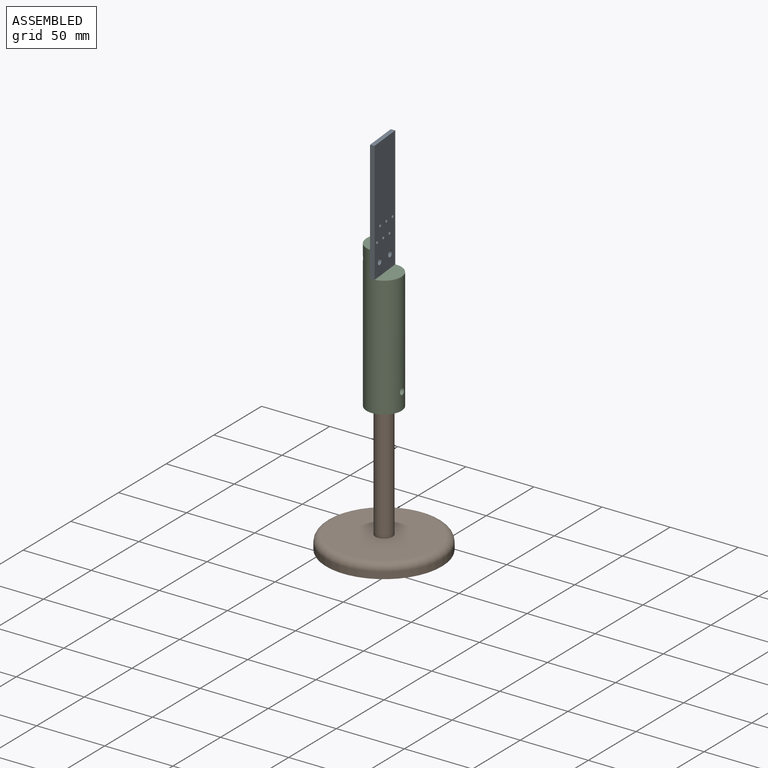
[diagram: assembled view]
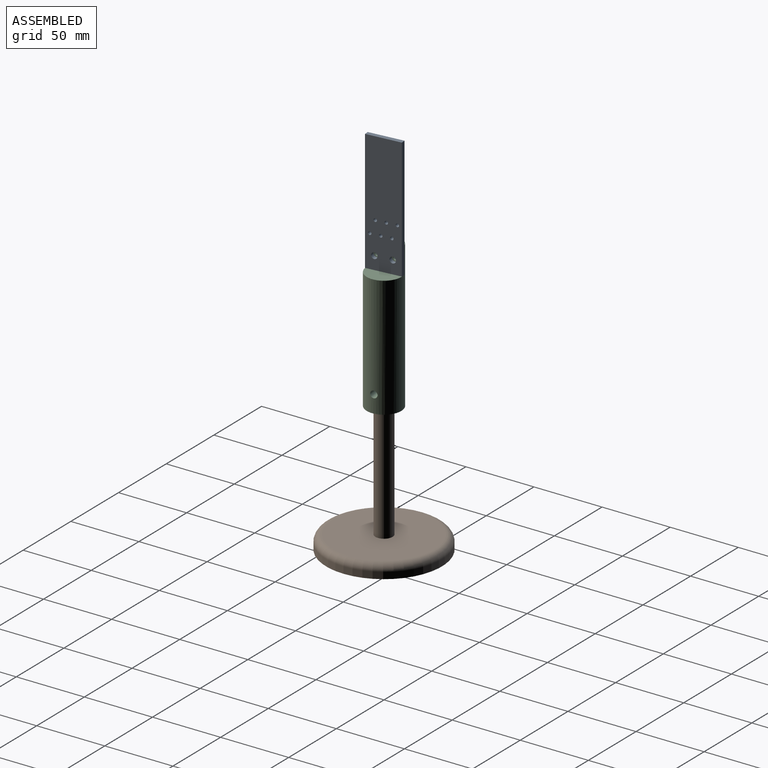
[diagram: assembled view, second angle]
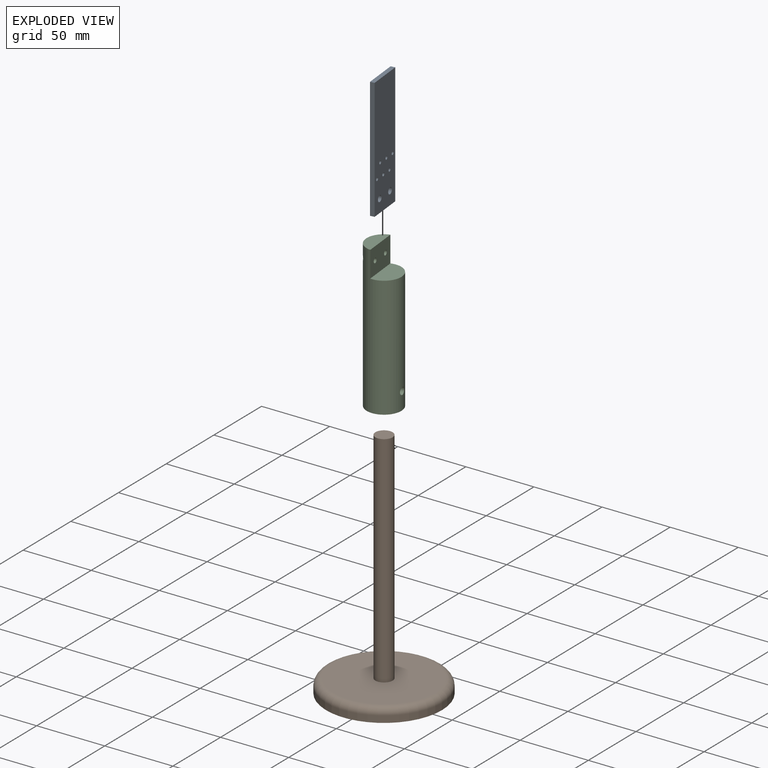
[diagram: exploded view]
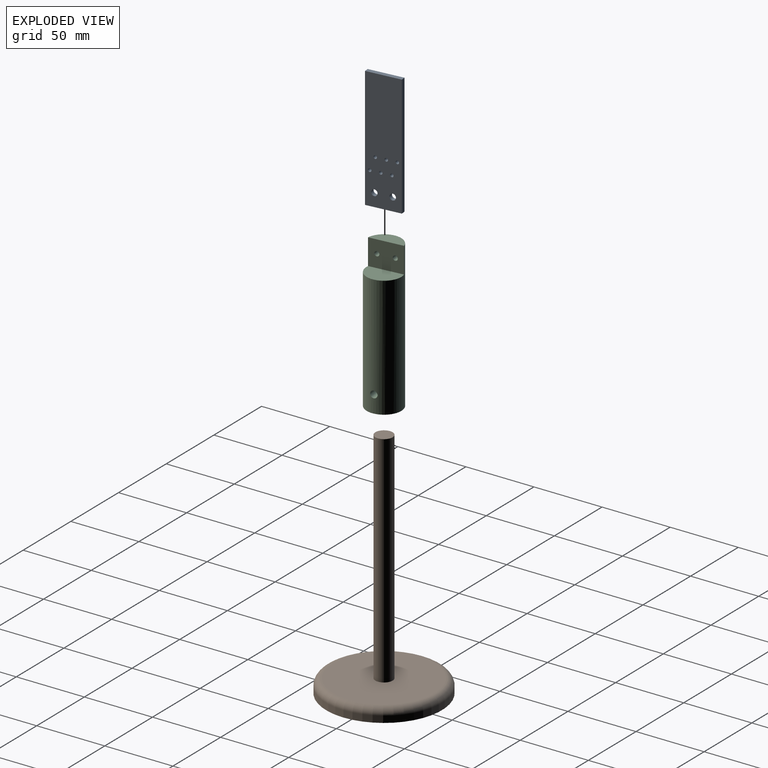
[diagram: exploded view, second angle]
ASSEMBLY  parts=3 mates=5
PART A: 14 faces, bbox 25.4x3.2x88.9 mm
  f0: plane 88.9x3.18mm, normal (-1,0,0), area 282.3mm2, adj f1,f3,f4,f5
  f1: plane 25.4x3.18mm, normal (0,0,-1), area 80.6mm2, adj f0,f2,f4,f5
  f2: plane 88.9x3.18mm, normal (1,0,0), area 282.3mm2, adj f1,f3,f4,f5
  f3: plane 25.4x3.18mm, normal (0,0,1), area 80.6mm2, adj f0,f2,f4,f5
  f4: plane 88.9x25.4mm, normal (0,-1,0), area 2199.6mm2, adj f0,f1,f2,f3,f6,f7,f8,f9
  f5: plane 88.9x25.4mm, normal (0,1,0), area 2199.6mm2, adj f0,f1,f2,f3,f6,f7,f8,f9
  f6: cylinder r=2.25mm len=4.5mm, axis (0,-1,0), area 44.8mm2, adj f4,f5
  f7: cylinder r=2.25mm len=4.5mm, axis (0,-1,0), area 44.8mm2, adj f4,f5
  f8: cylinder r=1.19mm len=3.18mm, axis (0,-1,0), area 23.8mm2, adj f4,f5
  f9: cylinder r=1.19mm len=3.18mm, axis (0,-1,0), area 23.8mm2, adj f4,f5
  f10: cylinder r=1.19mm len=3.18mm, axis (0,-1,0), area 23.8mm2, adj f4,f5
  f11: cylinder r=1.19mm len=3.18mm, axis (0,-1,0), area 23.8mm2, adj f4,f5
  f12: cylinder r=1.19mm len=3.18mm, axis (0,-1,0), area 23.8mm2, adj f4,f5
  f13: cylinder r=1.19mm len=3.18mm, axis (0,-1,0), area 23.8mm2, adj f4,f5
PART B: 6 faces, bbox 92x92x171.4 mm
  f0: cylinder r=42.5mm len=85mm, axis (0,0,-1), area 1313.8mm2, adj f2,f5
  f1: plane 74.84x74.84mm, normal (0,0,1), area 4272.4mm2, adj f3,f5
  f2: plane 85x85mm, normal (0,0,-1), area 5674.5mm2, adj f0
  f3: cylinder r=6.35mm len=161.44mm, axis (0,0,-1), area 6441.3mm2, adj f1,f4
  f4: plane 12.7x12.7mm, normal (0,0,1), area 126.7mm2, adj f3
  f5: torus R=37.42mm, axis (0,0,1), area 2038.3mm2, adj f0,f1
PART C: 10 faces, bbox 25.4x25.4x108 mm
  f0: cylinder r=12.7mm len=107.95mm, axis (0,0,-1), area 7714mm2, adj f2,f3,f4,f5,f7,f8,f9
  f1: cylinder r=6.35mm len=76.2mm, axis (0,0,-1), area 3019.3mm2, adj f3,f6,f7
  f2: plane 24.89x10.16mm, normal (0,0,1), area 189.3mm2, adj f0,f4
  f3: plane 25.4x25.4mm, normal (0,0,-1), area 380mm2, adj f0,f1
  f4: plane 24.89x19.05mm, normal (0,-1,0), area 455.3mm2, adj f0,f2,f5,f8,f9
  f5: plane 25.4x15.24mm, normal (0,0,1), area 317.4mm2, adj f0,f4
  f6: plane 12.7x12.7mm, normal (0,0,-1), area 126.7mm2, adj f1
  f7: cylinder r=2.55mm len=6.89mm, axis (0,1,0), area 104mm2, adj f0,f1
  f8: cylinder r=1.73mm len=9.29mm, axis (0,-1,0), area 90.8mm2, adj f0,f4
  f9: cylinder r=1.73mm len=9.29mm, axis (0,-1,0), area 90.8mm2, adj f0,f4
PLACE A rot(axis=(0,0,-1),84.2deg) t=(-1.9,-0.19,-31.76)mm
PLACE B t=(0,0,-127)mm
PLACE C rot(axis=(0,0,1),95.8deg) t=(0,0,-31.76)mm
MATE cylindrical C.f0 <-> B.f0  axis (0,0,-1) through (0,0,22.22)mm
MATE planar A.f4 <-> C.f4  axis (-0.99,-0.1,0) through (-2.53,-0.26,102.29)mm
MATE planar B.f0 <-> C.f0  axis (0,0,1) through (0,0,44.44)mm
MATE cylindrical C.f8 <-> A.f7  axis (0.99,0.1,0) through (-1.89,-6.57,66.67)mm
MATE cylindrical A.f6 <-> C.f9  axis (0.99,0.1,0) through (-0.01,6.38,66.67)mm
